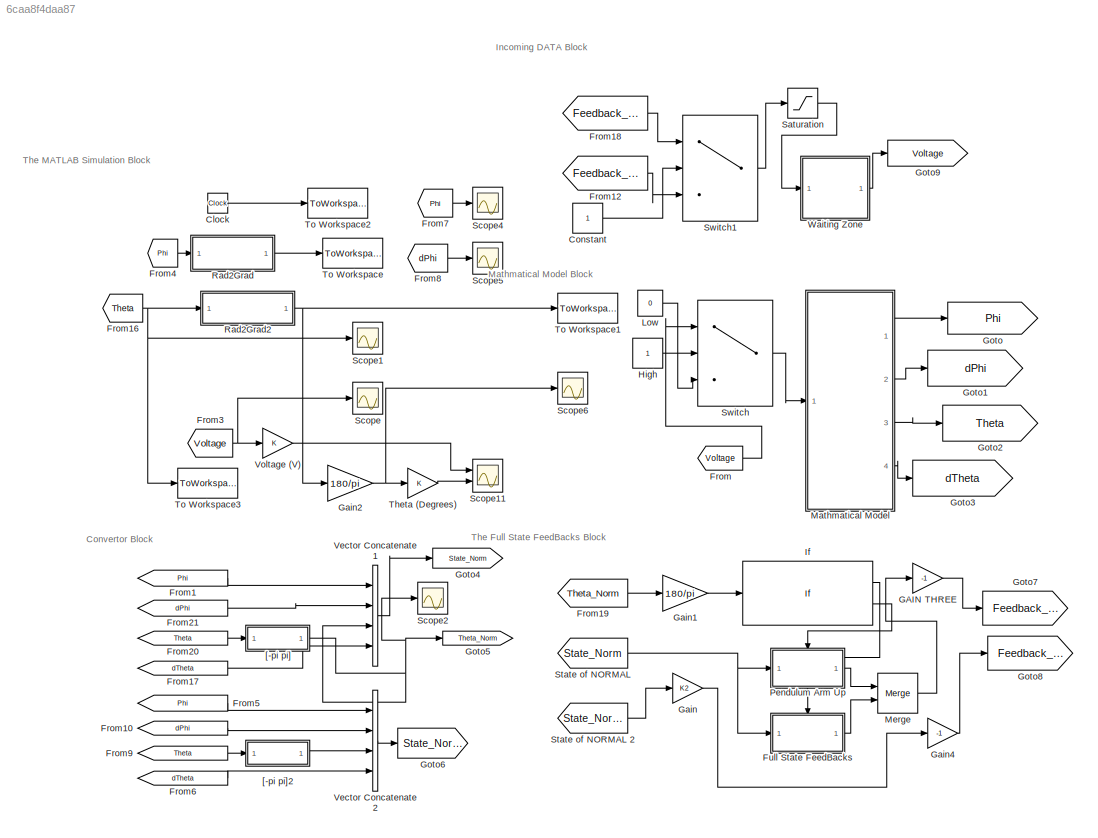
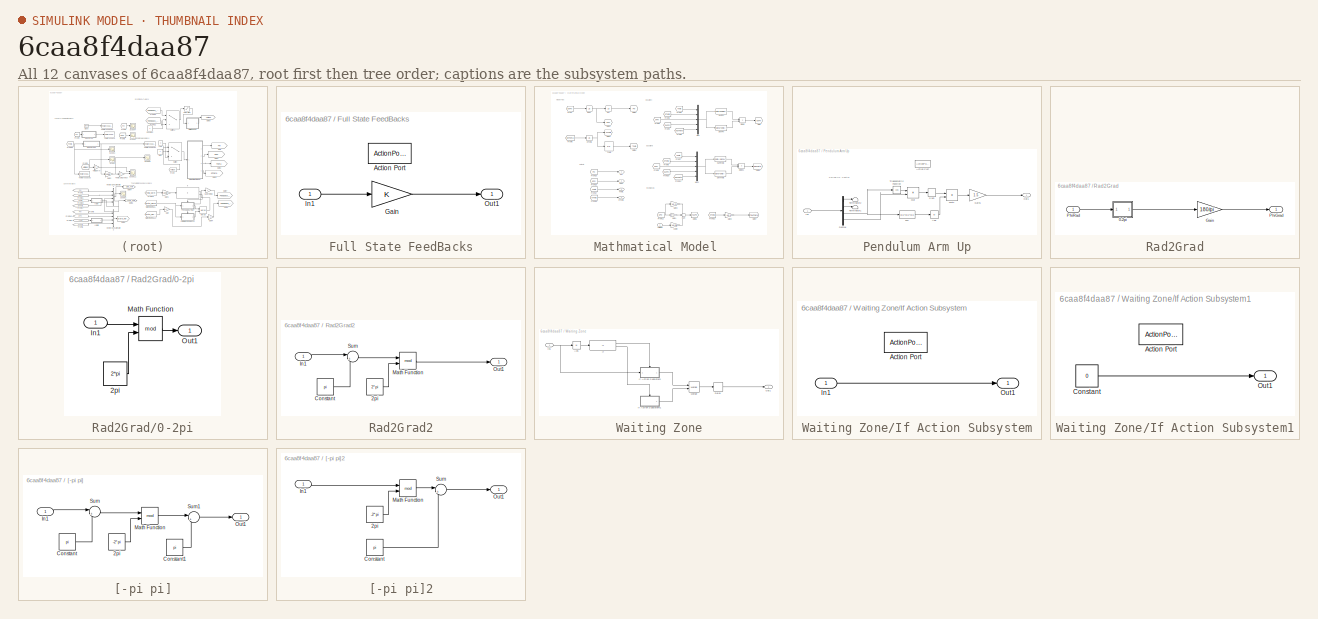
[diagram: thumbnail index - all 12 canvases of the model, root first then tree order]
MODEL slx_6caa8f4daa87
KIND model
CONFIG AbsTol = auto
CONFIG EnableMultiTasking = off
CONFIG FixedStep = Ts
CONFIG MaxStep = auto
CONFIG MinStep = auto
CONFIG PreLoadFcn = %myBusDef
CONFIG RelTol = 1e-3
CONFIG SampleTimeConstraint = Unconstrained
CONFIG SolverName = ode3
CONFIG StartFcn = % Full path to the block\n%blk = 'Furuta_Control/Bus Creator';\n\n% Attach the event listener\n%h = add_exec_event_listener(blk, ...\n%         'PostOutputs', @displayBusdata);
CONFIG StartTime = 0.0
CONFIG StopTime = 30
BLOCK [Clock] Clock
BLOCK [Constant] Constant
BLOCK [From] From
  GotoTag = Voltage
BLOCK [From] From1
  GotoTag = Phi
BLOCK [From] From10
  GotoTag = dPhi
BLOCK [From] From12
  GotoTag = Feedback_down
BLOCK [From] From16
  GotoTag = Theta
BLOCK [From] From17
  GotoTag = dTheta
BLOCK [From] From18
  GotoTag = Feedback_up
BLOCK [From] From19
  GotoTag = Theta_Norm
BLOCK [From] From20
  GotoTag = Theta
BLOCK [From] From21
  GotoTag = dPhi
BLOCK [From] From3
  GotoTag = Voltage
BLOCK [From] From4
  GotoTag = Phi
BLOCK [From] From5
  GotoTag = Phi
BLOCK [From] From6
  GotoTag = dTheta
BLOCK [From] From7
  GotoTag = Phi
BLOCK [From] From8
  GotoTag = dPhi
BLOCK [From] From9
  GotoTag = Theta
BLOCK [SubSystem] Full State FeedBacks
  Ports = [1, 1, 0, 0, 0, 0, 0, 1]
  RequestExecContextInheritance = off
  TreatAsAtomicUnit = on
BLOCK [ActionPort] Full State FeedBacks/Action Port
  ActionPortLabel = if((u1 < 30) & (u1 > -30 ))
BLOCK [Gain] Full State FeedBacks/Gain
  Gain = K
  Multiplication = Matrix(K*u)
  OutDataTypeStr = double
  ParamDataTypeStr = double
BLOCK [Inport] Full State FeedBacks/In1
BLOCK [Outport] Full State FeedBacks/Out1
BLOCK [Gain] GAIN THREE
  Gain = -1
BLOCK [Gain] Gain
  Gain = K2
  Multiplication = Matrix(K*u)
BLOCK [Gain] Gain1
  Gain = 180/pi
BLOCK [Gain] Gain2
  Gain = 180/pi
BLOCK [Gain] Gain4
  Gain = -1
BLOCK [Goto] Goto
  GotoTag = Phi
BLOCK [Goto] Goto1
  GotoTag = dPhi
BLOCK [Goto] Goto2
  GotoTag = Theta
BLOCK [Goto] Goto3
  GotoTag = dTheta
BLOCK [Goto] Goto4
  GotoTag = State_Norm
BLOCK [Goto] Goto5
  GotoTag = Theta_Norm
BLOCK [Goto] Goto6
  GotoTag = State_Norm2
BLOCK [Goto] Goto7
  GotoTag = Feedback_up
BLOCK [Goto] Goto8
  GotoTag = Feedback_down
BLOCK [Goto] Goto9
  GotoTag = Voltage
BLOCK [Constant] High
BLOCK [If] If
  IfExpression = (u1 < 30) & (u1 > -30 )
  Ports = [1, 2]
BLOCK [Constant] Low
  Value = 0
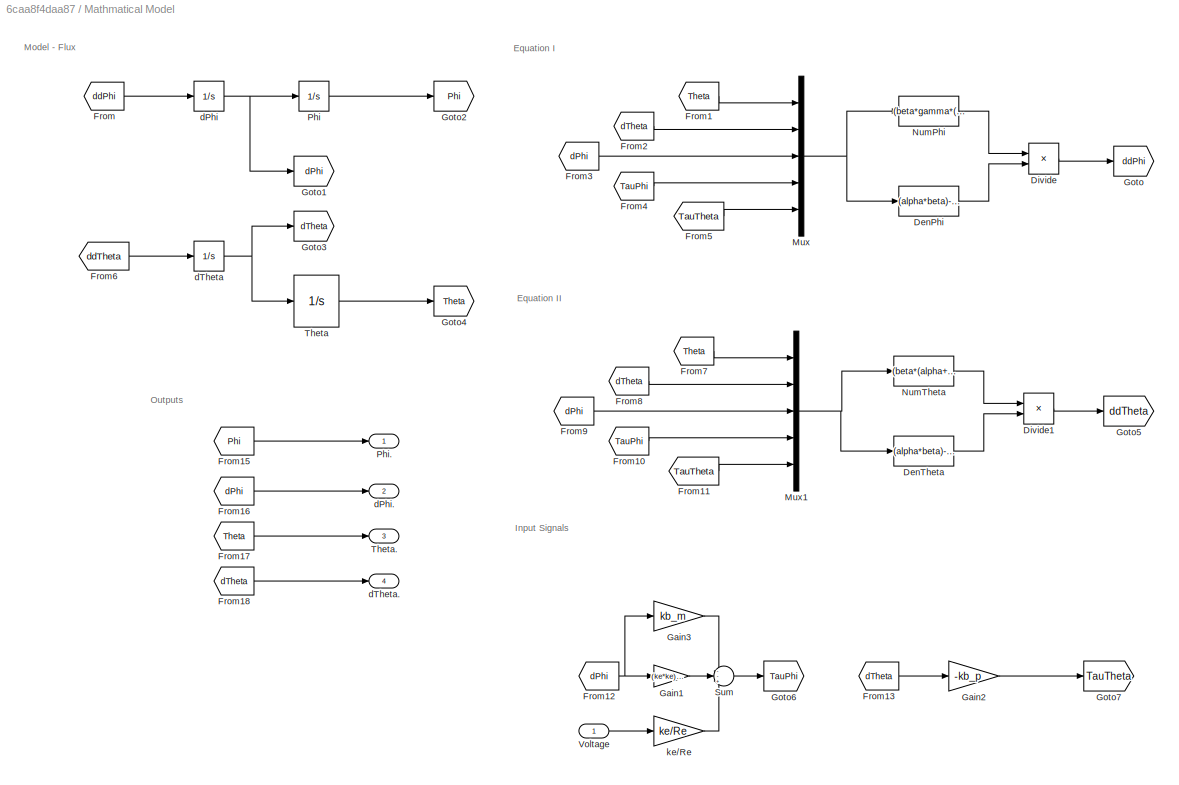
BLOCK [SubSystem] Mathmatical Model 
  Ports = [1, 4]
  RequestExecContextInheritance = off
BLOCK [Fcn] Mathmatical Model /DenPhi
  Expr = (alpha*beta)-(gamma*gamma)+((beta*beta+gamma*gamma)*sin(u(1))*sin(u(1)))
BLOCK [Fcn] Mathmatical Model /DenTheta
  Expr = (alpha*beta)-(gamma*gamma)+((beta*beta+gamma*gamma)*sin(u(1))*sin(u(1)))
BLOCK [Product] Mathmatical Model /Divide
  Inputs = */
  Ports = [2, 1]
BLOCK [Product] Mathmatical Model /Divide1
  Inputs = */
  Ports = [2, 1]
BLOCK [From] Mathmatical Model /From
  GotoTag = ddPhi
BLOCK [From] Mathmatical Model /From1
  GotoTag = Theta
BLOCK [From] Mathmatical Model /From10
  GotoTag = TauPhi
BLOCK [From] Mathmatical Model /From11
  GotoTag = TauTheta
BLOCK [From] Mathmatical Model /From12
  GotoTag = dPhi
BLOCK [From] Mathmatical Model /From13
  GotoTag = dTheta
BLOCK [From] Mathmatical Model /From15
  GotoTag = Phi
BLOCK [From] Mathmatical Model /From16
  GotoTag = dPhi
BLOCK [From] Mathmatical Model /From17
  GotoTag = Theta
BLOCK [From] Mathmatical Model /From18
  GotoTag = dTheta
BLOCK [From] Mathmatical Model /From2
  GotoTag = dTheta
BLOCK [From] Mathmatical Model /From3
  GotoTag = dPhi
BLOCK [From] Mathmatical Model /From4
  GotoTag = TauPhi
BLOCK [From] Mathmatical Model /From5
  GotoTag = TauTheta
BLOCK [From] Mathmatical Model /From6
  GotoTag = ddTheta
BLOCK [From] Mathmatical Model /From7
  GotoTag = Theta
BLOCK [From] Mathmatical Model /From8
  GotoTag = dTheta
BLOCK [From] Mathmatical Model /From9
  GotoTag = dPhi
BLOCK [Gain] Mathmatical Model /Gain1
  Gain = (ke*ke)/Re
BLOCK [Gain] Mathmatical Model /Gain2
  Gain = -kb_p
BLOCK [Gain] Mathmatical Model /Gain3
  Gain = kb_m
BLOCK [Goto] Mathmatical Model /Goto
  GotoTag = ddPhi
BLOCK [Goto] Mathmatical Model /Goto1
  GotoTag = dPhi
BLOCK [Goto] Mathmatical Model /Goto2
  GotoTag = Phi
BLOCK [Goto] Mathmatical Model /Goto3
  GotoTag = dTheta
BLOCK [Goto] Mathmatical Model /Goto4
  GotoTag = Theta
BLOCK [Goto] Mathmatical Model /Goto5
  GotoTag = ddTheta
BLOCK [Goto] Mathmatical Model /Goto6
  GotoTag = TauPhi
BLOCK [Goto] Mathmatical Model /Goto7
  GotoTag = TauTheta
BLOCK [Mux] Mathmatical Model /Mux
  DisplayOption = bar
  Inputs = 5
  Ports = [5, 1]
BLOCK [Mux] Mathmatical Model /Mux1
  DisplayOption = bar
  Inputs = 5
  Ports = [5, 1]
BLOCK [Fcn] Mathmatical Model /NumPhi
  Expr = (beta*gamma*(sin(u(1))*sin(u(1))-1)*sin(u(1))*u(3)*u(3))-(2*beta*beta*cos(u(1))*sin(u(1))*u(3)*u(2))+(beta*gamma*sin(u(1))*u(2)*u(2))-(gamma*sigma*cos(u(1))*sin(u(1)))+(beta*u(4))-(gamma*cos(u(1))*u(5))
BLOCK [Fcn] Mathmatical Model /NumTheta
  Expr = (beta*(alpha+beta*sin(u(1))*sin(u(1)))*cos(u(1))*sin(u(1))*u(3)*u(3))+(2*beta*gamma*(1-sin(u(1))*sin(u(1)))*sin(u(1))*u(3)*u(2))-(gamma*gamma*cos(u(1))*sin(u(1))*u(2)*u(2))+(sigma*(alpha+beta*sin(u(1))*sin(u(1)))*sin(u(1)))-(gamma*cos(u(1))*u(4))+((alpha+beta*sin(u(1))*sin(u(1)))*u(5))
BLOCK [Integrator] Mathmatical Model /Phi
  Ports = [1, 1]
BLOCK [Outport] Mathmatical Model /Phi.
BLOCK [Sum] Mathmatical Model /Sum
  Inputs = --+
  Ports = [3, 1]
BLOCK [Integrator] Mathmatical Model /Theta
  InitialCondition = initial_state
  Ports = [1, 1]
BLOCK [Outport] Mathmatical Model /Theta.
  Port = 3
BLOCK [Inport] Mathmatical Model /Voltage 
BLOCK [Integrator] Mathmatical Model /dPhi
  Ports = [1, 1]
BLOCK [Outport] Mathmatical Model /dPhi.
  Port = 2
BLOCK [Integrator] Mathmatical Model /dTheta
  Ports = [1, 1]
BLOCK [Outport] Mathmatical Model /dTheta.
  Port = 4
BLOCK [Gain] Mathmatical Model /ke//Re 
  Gain = ke/Re
BLOCK [Merge] Merge
  Ports = [2, 1]
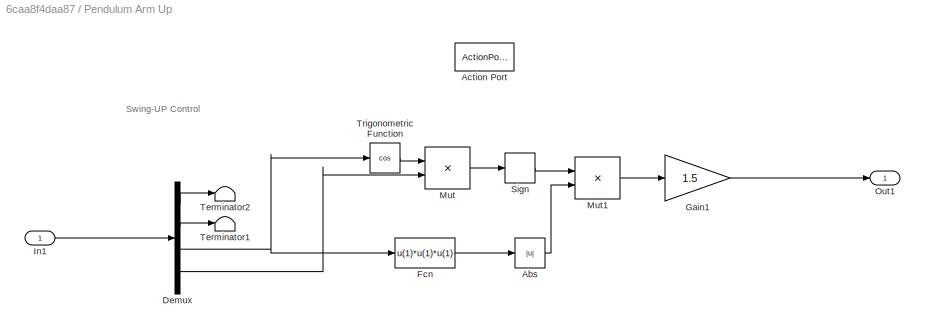
BLOCK [SubSystem] Pendulum Arm Up
  Ports = [1, 1, 0, 0, 0, 0, 0, 1]
  RequestExecContextInheritance = off
  TreatAsAtomicUnit = on
BLOCK [Abs] Pendulum Arm Up/Abs
  SaturateOnIntegerOverflow = off
BLOCK [ActionPort] Pendulum Arm Up/Action Port
  ActionPortLabel = else
BLOCK [Demux] Pendulum Arm Up/Demux
  Ports = [1, 4]
BLOCK [Fcn] Pendulum Arm Up/Fcn
  Expr = u(1)*u(1)*u(1)
BLOCK [Gain] Pendulum Arm Up/Gain1
  Gain = 1.5
BLOCK [Inport] Pendulum Arm Up/In1
BLOCK [Product] Pendulum Arm Up/Mut
  Inputs = **
  Ports = [2, 1]
BLOCK [Product] Pendulum Arm Up/Mut1
  Inputs = **
  Ports = [2, 1]
BLOCK [Outport] Pendulum Arm Up/Out1
  InitialOutput = 0
BLOCK [Signum] Pendulum Arm Up/Sign
BLOCK [Terminator] Pendulum Arm Up/Terminator1
BLOCK [Terminator] Pendulum Arm Up/Terminator2
BLOCK [Trigonometry] Pendulum Arm Up/Trigonometric Function
  Operator = cos
  Ports = [1, 1]
BLOCK [SubSystem] Rad2Grad
  Ports = [1, 1]
  RequestExecContextInheritance = off
BLOCK [SubSystem] Rad2Grad/0-2pi
  Ports = [1, 1]
  RequestExecContextInheritance = off
BLOCK [Constant] Rad2Grad/0-2pi/2pi
  Value = 2*pi
BLOCK [Inport] Rad2Grad/0-2pi/In1
BLOCK [Math] Rad2Grad/0-2pi/Math Function
  Operator = mod
  Ports = [2, 1]
  SignedPower = on
BLOCK [Outport] Rad2Grad/0-2pi/Out1
BLOCK [Gain] Rad2Grad/Gain
  Commented = through
  Gain = 180/pi
BLOCK [Outport] Rad2Grad/PhiGrad
BLOCK [Inport] Rad2Grad/PhiRad
BLOCK [SubSystem] Rad2Grad2
  Ports = [1, 1]
  RequestExecContextInheritance = off
BLOCK [Constant] Rad2Grad2/2pi
  Value = 2*pi
BLOCK [Constant] Rad2Grad2/Constant
  Value = pi
BLOCK [Inport] Rad2Grad2/In1
BLOCK [Math] Rad2Grad2/Math Function
  Operator = mod
  Ports = [2, 1]
  SignedPower = on
BLOCK [Outport] Rad2Grad2/Out1
BLOCK [Sum] Rad2Grad2/Sum
  Inputs = |+-
  Ports = [2, 1]
BLOCK [Saturate] Saturation
  LowerLimit = -6
  UpperLimit = 6
BLOCK [Scope] Scope
  Floating = off
  NumInputPorts = 1
  Ports = [1]
  ScopeSpecificationString = Simulink.scopes.TimeScopeBlockCfg('CurrentConfiguration', extmgr.ConfigurationSet(extmgr.Configuration('Core','General UI',true,'FigureColor',[0.156862745098039 0.156862745098039 0.156862745098039]),extmgr.Configuration('Core','Source UI',true),extmgr.Configuration('Sources','WiredSimulink',true,'DataLoggingSaveFormat','StructureWithTime','DataLoggingDecimation','1','DataLoggingDecimateData',true)...<+2690ch>
BLOCK [Scope] Scope1
  Floating = off
  NumInputPorts = 1
  Ports = [1]
  ScopeSpecificationString = Simulink.scopes.TimeScopeBlockCfg('CurrentConfiguration', extmgr.ConfigurationSet(extmgr.Configuration('Core','General UI',true,'FigureColor',[0.156862745098039 0.156862745098039 0.156862745098039]),extmgr.Configuration('Core','Source UI',true),extmgr.Configuration('Sources','WiredSimulink',true,'DataLoggingVariableName','ScopeData2','DataLoggingSaveFormat','StructureWithTime','DataLoggingDecimati...<+2730ch>
BLOCK [Scope] Scope11
  Floating = off
  NumInputPorts = 2
  Ports = [2]
  ScopeSpecificationString = Simulink.scopes.TimeScopeBlockCfg('CurrentConfiguration', extmgr.ConfigurationSet(extmgr.Configuration('Core','General UI',true,'FigureColor',[0.156862745098039 0.156862745098039 0.156862745098039]),extmgr.Configuration('Core','Source UI',true),extmgr.Configuration('Sources','WiredSimulink',true,'DataLoggingVariableName','ScopeData1','DataLoggingSaveFormat','StructureWithTime','DataLoggingDecimati...<+4575ch>
BLOCK [Scope] Scope2
  Floating = off
  NumInputPorts = 1
  Ports = [1]
  ScopeSpecificationString = Simulink.scopes.TimeScopeBlockCfg('CurrentConfiguration', extmgr.ConfigurationSet(extmgr.Configuration('Core','General UI',true,'FigureColor',[0.156862745098039 0.156862745098039 0.156862745098039]),extmgr.Configuration('Core','Source UI',true),extmgr.Configuration('Sources','WiredSimulink',true,'DataLoggingVariableName','ScopeData1','DataLoggingSaveFormat','StructureWithTime','DataLoggingDecimati...<+2727ch>
BLOCK [Scope] Scope4
  Floating = off
  NumInputPorts = 1
  Ports = [1]
  ScopeSpecificationString = Simulink.scopes.TimeScopeBlockCfg('CurrentConfiguration', extmgr.ConfigurationSet(extmgr.Configuration('Core','General UI',true,'FigureColor',[0.156862745098039 0.156862745098039 0.156862745098039]),extmgr.Configuration('Core','Source UI',true),extmgr.Configuration('Sources','WiredSimulink',true,'DataLoggingVariableName','ScopeData4','DataLoggingSaveFormat','StructureWithTime','DataLoggingDecimati...<+2730ch>
BLOCK [Scope] Scope5
  Floating = off
  NumInputPorts = 1
  Ports = [1]
  ScopeSpecificationString = C++SS(StrPVP('Open','off'),StrPVP('TimeRange','auto'),StrPVP('TickLabels','OneTimeTick'),StrPVP('ShowLegends','off'),StrPVP('LimitDataPoints','off'),StrPVP('MaxDataPoints','5000'),StrPVP('SaveToWorkspace','off'),StrPVP('SaveName','ScopeData5'),StrPVP('YMin','-1.70328'),StrPVP('YMax','2.05412'),StrPVP('BlockParamSampleInput','off'),StrPVP('BlockParamSampleTime','-1'),StrPVP('ZoomMode','on'),StrPVP(...<+578ch>
BLOCK [Scope] Scope6
  Floating = off
  NumInputPorts = 1
  Ports = [1]
  ScopeSpecificationString = Simulink.scopes.TimeScopeBlockCfg('CurrentConfiguration', extmgr.ConfigurationSet(extmgr.Configuration('Core','General UI',true,'FigureColor',[0.156862745098039 0.156862745098039 0.156862745098039]),extmgr.Configuration('Core','Source UI',true),extmgr.Configuration('Sources','WiredSimulink',true,'DataLoggingVariableName','ScopeData6','DataLoggingSaveFormat','StructureWithTime','DataLoggingDecimati...<+2736ch>
BLOCK [From] State of NORMAL
  GotoTag = State_Norm
BLOCK [From] State of NORMAL 2
  GotoTag = State_Norm2
BLOCK [Switch] Switch
  Criteria = u2 > Threshold
  InputSameDT = off
  SaturateOnIntegerOverflow = off
  Threshold = 0.5
BLOCK [Switch] Switch1
  Criteria = u2 > Threshold
  InputSameDT = off
  SaturateOnIntegerOverflow = off
  Threshold = 0.5
BLOCK [Gain] Theta (Degrees)
BLOCK [ToWorkspace] To Workspace
  FixptAsFi = on
  MaxDataPoints = inf
  Ports = [1]
  SampleTime = -1
  Save2DSignal = 2-D array (concatenate along first dimension)
  VariableName = simPhi
BLOCK [ToWorkspace] To Workspace1
  FixptAsFi = on
  MaxDataPoints = inf
  Ports = [1]
  SampleTime = -1
  Save2DSignal = 2-D array (concatenate along first dimension)
  VariableName = simTheta
BLOCK [ToWorkspace] To Workspace2
  FixptAsFi = on
  MaxDataPoints = inf
  Ports = [1]
  SampleTime = -1
  Save2DSignal = 2-D array (concatenate along first dimension)
  VariableName = simt
BLOCK [ToWorkspace] To Workspace3
  FixptAsFi = on
  MaxDataPoints = inf
  Ports = [1]
  SampleTime = -1
  SaveFormat = Timeseries
  VariableName = simout
BLOCK [Concatenate] Vector Concatenate1
  NumInputs = 4
  Ports = [4, 1]
BLOCK [Concatenate] Vector Concatenate2
  NumInputs = 4
  Ports = [4, 1]
BLOCK [Gain] Voltage (V)
BLOCK [SubSystem] Waiting Zone
  Commented = through
  Ports = [1, 1]
  RequestExecContextInheritance = off
BLOCK [Abs] Waiting Zone/Abs
  SaturateOnIntegerOverflow = off
BLOCK [Delay] Waiting Zone/Delay
  DelayLength = 10
  InputPortMap = u0
  Ports = [1, 1]
BLOCK [If] Waiting Zone/If
  IfExpression = u1 > Zn
  Ports = [1, 2]
BLOCK [SubSystem] Waiting Zone/If Action Subsystem
  Ports = [1, 1, 0, 0, 0, 0, 0, 1]
  RequestExecContextInheritance = off
  TreatAsAtomicUnit = on
BLOCK [ActionPort] Waiting Zone/If Action Subsystem/Action Port
  ActionPortLabel = if { }
BLOCK [Inport] Waiting Zone/If Action Subsystem/In1
BLOCK [Outport] Waiting Zone/If Action Subsystem/Out1
BLOCK [SubSystem] Waiting Zone/If Action Subsystem1
  Ports = [0, 1, 0, 0, 0, 0, 0, 1]
  RequestExecContextInheritance = off
  TreatAsAtomicUnit = on
BLOCK [ActionPort] Waiting Zone/If Action Subsystem1/Action Port
  ActionPortLabel = else { }
BLOCK [Constant] Waiting Zone/If Action Subsystem1/Constant
  Value = 0
BLOCK [Outport] Waiting Zone/If Action Subsystem1/Out1
BLOCK [Inport] Waiting Zone/In1
BLOCK [Merge] Waiting Zone/Merge
  Ports = [2, 1]
BLOCK [Outport] Waiting Zone/Out1
BLOCK [SubSystem] [-pi pi]
  Ports = [1, 1]
  RequestExecContextInheritance = off
BLOCK [Constant] [-pi pi]/2pi
  Value = -2*pi
BLOCK [Constant] [-pi pi]/Constant
  Value = pi
BLOCK [Constant] [-pi pi]/Constant1
  Value = pi
BLOCK [Inport] [-pi pi]/In1
BLOCK [Math] [-pi pi]/Math Function
  Operator = mod
  Ports = [2, 1]
  SignedPower = on
BLOCK [Outport] [-pi pi]/Out1
BLOCK [Sum] [-pi pi]/Sum
  Inputs = |+-
  Ports = [2, 1]
BLOCK [Sum] [-pi pi]/Sum1
  Inputs = |++
  Ports = [2, 1]
BLOCK [SubSystem] [-pi pi]2
  Ports = [1, 1]
  RequestExecContextInheritance = off
BLOCK [Constant] [-pi pi]2/2pi
  Value = -2*pi
BLOCK [Constant] [-pi pi]2/Constant
  Value = pi
BLOCK [Inport] [-pi pi]2/In1
BLOCK [Math] [-pi pi]2/Math Function
  Operator = mod
  Ports = [2, 1]
  SignedPower = on
BLOCK [Outport] [-pi pi]2/Out1
BLOCK [Sum] [-pi pi]2/Sum
  Inputs = |++
  Ports = [2, 1]
ANNOTATION (root): Convertor Block
ANNOTATION (root): Incoming DATA Block
ANNOTATION (root): Mathmatical Model Block
ANNOTATION (root): The Full State FeedBacks Block
ANNOTATION (root): The MATLAB Simulation Block
ANNOTATION Mathmatical Model : Equation I
ANNOTATION Mathmatical Model : Equation II
ANNOTATION Mathmatical Model : Input Signals
ANNOTATION Mathmatical Model : Model - Flux
ANNOTATION Mathmatical Model : Outputs
ANNOTATION Pendulum Arm Up: Swing-UP Control
LINE Clock:1 -> To Workspace2:1
LINE Constant:1 -> Switch1:2
LINE From10:1 -> Vector Concatenate2:2
LINE From12:1 -> Switch1:3
NET From16:1 -> Rad2Grad2:1, Scope1:1, To Workspace3:1
LINE From17:1 -> Vector Concatenate1:4
LINE From18:1 -> Switch1:1
LINE From19:1 -> Gain1:1
LINE From1:1 -> Vector Concatenate1:1
LINE From20:1 -> [-pi pi]:1
LINE From21:1 -> Vector Concatenate1:2
NET From3:1 -> Scope:1, Voltage (V):1
LINE From4:1 -> Rad2Grad:1
LINE From5:1 -> Vector Concatenate2:1
LINE From6:1 -> Vector Concatenate2:4
LINE From7:1 -> Scope4:1
LINE From8:1 -> Scope5:1
LINE From9:1 -> [-pi pi]2:1
LINE From:1 -> Switch:1
LINE Full State FeedBacks/Gain:1 -> Full State FeedBacks/Out1:1
LINE Full State FeedBacks/In1:1 -> Full State FeedBacks/Gain:1
LINE Full State FeedBacks:1 -> Merge:2
LINE GAIN THREE:1 -> Goto7:1
LINE Gain1:1 -> If:1
NET Gain2:1 -> Scope6:1, Theta (Degrees):1
LINE Gain4:1 -> Goto8:1
LINE Gain:1 -> Gain4:1
LINE High:1 -> Switch:2
LINE If:1 -> Full State FeedBacks:ifaction
LINE If:2 -> Pendulum Arm Up:ifaction
LINE Low:1 -> Switch:3
LINE Mathmatical Model /DenPhi:1 -> Mathmatical Model /Divide:2
LINE Mathmatical Model /DenTheta:1 -> Mathmatical Model /Divide1:2
LINE Mathmatical Model /Divide1:1 -> Mathmatical Model /Goto5:1
LINE Mathmatical Model /Divide:1 -> Mathmatical Model /Goto:1
LINE Mathmatical Model /From10:1 -> Mathmatical Model /Mux1:4
LINE Mathmatical Model /From11:1 -> Mathmatical Model /Mux1:5
NET Mathmatical Model /From12:1 -> Mathmatical Model /Gain1:1, Mathmatical Model /Gain3:1
LINE Mathmatical Model /From13:1 -> Mathmatical Model /Gain2:1
LINE Mathmatical Model /From15:1 -> Mathmatical Model /Phi.:1
LINE Mathmatical Model /From16:1 -> Mathmatical Model /dPhi.:1
LINE Mathmatical Model /From17:1 -> Mathmatical Model /Theta.:1
LINE Mathmatical Model /From18:1 -> Mathmatical Model /dTheta.:1
LINE Mathmatical Model /From1:1 -> Mathmatical Model /Mux:1
LINE Mathmatical Model /From2:1 -> Mathmatical Model /Mux:2
LINE Mathmatical Model /From3:1 -> Mathmatical Model /Mux:3
LINE Mathmatical Model /From4:1 -> Mathmatical Model /Mux:4
LINE Mathmatical Model /From5:1 -> Mathmatical Model /Mux:5
LINE Mathmatical Model /From6:1 -> Mathmatical Model /dTheta:1
LINE Mathmatical Model /From7:1 -> Mathmatical Model /Mux1:1
LINE Mathmatical Model /From8:1 -> Mathmatical Model /Mux1:2
LINE Mathmatical Model /From9:1 -> Mathmatical Model /Mux1:3
LINE Mathmatical Model /From:1 -> Mathmatical Model /dPhi:1
LINE Mathmatical Model /Gain1:1 -> Mathmatical Model /Sum:2
LINE Mathmatical Model /Gain2:1 -> Mathmatical Model /Goto7:1
LINE Mathmatical Model /Gain3:1 -> Mathmatical Model /Sum:1
NET Mathmatical Model /Mux1:1 -> Mathmatical Model /DenTheta:1, Mathmatical Model /NumTheta:1
NET Mathmatical Model /Mux:1 -> Mathmatical Model /DenPhi:1, Mathmatical Model /NumPhi:1
LINE Mathmatical Model /NumPhi:1 -> Mathmatical Model /Divide:1
LINE Mathmatical Model /NumTheta:1 -> Mathmatical Model /Divide1:1
LINE Mathmatical Model /Phi:1 -> Mathmatical Model /Goto2:1
LINE Mathmatical Model /Sum:1 -> Mathmatical Model /Goto6:1
LINE Mathmatical Model /Theta:1 -> Mathmatical Model /Goto4:1
LINE Mathmatical Model /Voltage :1 -> Mathmatical Model /ke//Re :1
NET Mathmatical Model /dPhi:1 -> Mathmatical Model /Goto1:1, Mathmatical Model /Phi:1
NET Mathmatical Model /dTheta:1 -> Mathmatical Model /Goto3:1, Mathmatical Model /Theta:1
LINE Mathmatical Model /ke//Re :1 -> Mathmatical Model /Sum:3
LINE Mathmatical Model :1 -> Goto:1
LINE Mathmatical Model :2 -> Goto1:1
LINE Mathmatical Model :3 -> Goto2:1
LINE Mathmatical Model :4 -> Goto3:1
LINE Merge:1 -> GAIN THREE:1
LINE Pendulum Arm Up/Abs:1 -> Pendulum Arm Up/Mut1:2
LINE Pendulum Arm Up/Demux:1 -> Pendulum Arm Up/Terminator2:1
LINE Pendulum Arm Up/Demux:2 -> Pendulum Arm Up/Terminator1:1
NET Pendulum Arm Up/Demux:3 -> Pendulum Arm Up/Fcn:1, Pendulum Arm Up/Trigonometric Function:1
LINE Pendulum Arm Up/Demux:4 -> Pendulum Arm Up/Mut:2
LINE Pendulum Arm Up/Fcn:1 -> Pendulum Arm Up/Abs:1
LINE Pendulum Arm Up/Gain1:1 -> Pendulum Arm Up/Out1:1
LINE Pendulum Arm Up/In1:1 -> Pendulum Arm Up/Demux:1
LINE Pendulum Arm Up/Mut1:1 -> Pendulum Arm Up/Gain1:1
LINE Pendulum Arm Up/Mut:1 -> Pendulum Arm Up/Sign:1
LINE Pendulum Arm Up/Sign:1 -> Pendulum Arm Up/Mut1:1
LINE Pendulum Arm Up/Trigonometric Function:1 -> Pendulum Arm Up/Mut:1
LINE Pendulum Arm Up:1 -> Merge:1
LINE Rad2Grad/0-2pi/2pi:1 -> Rad2Grad/0-2pi/Math Function:2
LINE Rad2Grad/0-2pi/In1:1 -> Rad2Grad/0-2pi/Math Function:1
LINE Rad2Grad/0-2pi/Math Function:1 -> Rad2Grad/0-2pi/Out1:1
LINE Rad2Grad/0-2pi:1 -> Rad2Grad/Gain:1
LINE Rad2Grad/Gain:1 -> Rad2Grad/PhiGrad:1
LINE Rad2Grad/PhiRad:1 -> Rad2Grad/0-2pi:1
LINE Rad2Grad2/2pi:1 -> Rad2Grad2/Math Function:2
LINE Rad2Grad2/Constant:1 -> Rad2Grad2/Sum:2
LINE Rad2Grad2/In1:1 -> Rad2Grad2/Sum:1
LINE Rad2Grad2/Math Function:1 -> Rad2Grad2/Out1:1
LINE Rad2Grad2/Sum:1 -> Rad2Grad2/Math Function:1
NET Rad2Grad2:1 -> Gain2:1, To Workspace1:1
LINE Rad2Grad:1 -> To Workspace:1
LINE Saturation:1 -> Waiting Zone:1
LINE State of NORMAL 2:1 -> Gain:1
NET State of NORMAL:1 -> Full State FeedBacks:1, Pendulum Arm Up:1
LINE Switch1:1 -> Saturation:1
LINE Switch:1 -> Mathmatical Model :1
LINE Theta (Degrees):1 -> Scope11:2
LINE Vector Concatenate1:1 -> Goto4:1
LINE Vector Concatenate2:1 -> Goto6:1
LINE Voltage (V):1 -> Scope11:1
LINE Waiting Zone/Abs:1 -> Waiting Zone/If:1
LINE Waiting Zone/Delay:1 -> Waiting Zone/Out1:1
LINE Waiting Zone/If Action Subsystem/In1:1 -> Waiting Zone/If Action Subsystem/Out1:1
LINE Waiting Zone/If Action Subsystem1/Constant:1 -> Waiting Zone/If Action Subsystem1/Out1:1
LINE Waiting Zone/If Action Subsystem1:1 -> Waiting Zone/Merge:2
LINE Waiting Zone/If Action Subsystem:1 -> Waiting Zone/Merge:1
LINE Waiting Zone/If:1 -> Waiting Zone/If Action Subsystem:ifaction
LINE Waiting Zone/If:2 -> Waiting Zone/If Action Subsystem1:ifaction
NET Waiting Zone/In1:1 -> Waiting Zone/Abs:1, Waiting Zone/If Action Subsystem:1
LINE Waiting Zone/Merge:1 -> Waiting Zone/Delay:1
LINE Waiting Zone:1 -> Goto9:1
LINE [-pi pi]/2pi:1 -> [-pi pi]/Math Function:2
LINE [-pi pi]/Constant1:1 -> [-pi pi]/Sum1:2
LINE [-pi pi]/Constant:1 -> [-pi pi]/Sum:2
LINE [-pi pi]/In1:1 -> [-pi pi]/Sum:1
LINE [-pi pi]/Math Function:1 -> [-pi pi]/Sum1:1
LINE [-pi pi]/Sum1:1 -> [-pi pi]/Out1:1
LINE [-pi pi]/Sum:1 -> [-pi pi]/Math Function:1
LINE [-pi pi]2/2pi:1 -> [-pi pi]2/Math Function:2
LINE [-pi pi]2/Constant:1 -> [-pi pi]2/Sum:2
LINE [-pi pi]2/In1:1 -> [-pi pi]2/Math Function:1
LINE [-pi pi]2/Math Function:1 -> [-pi pi]2/Sum:1
LINE [-pi pi]2/Sum:1 -> [-pi pi]2/Out1:1
LINE [-pi pi]2:1 -> Vector Concatenate2:3
NET [-pi pi]:1 -> Goto5:1, Scope2:1, Vector Concatenate1:3
note: NET lines group one-source signal fan-out (src -> all destinations, sorted); 1:1 wires keep LINE
